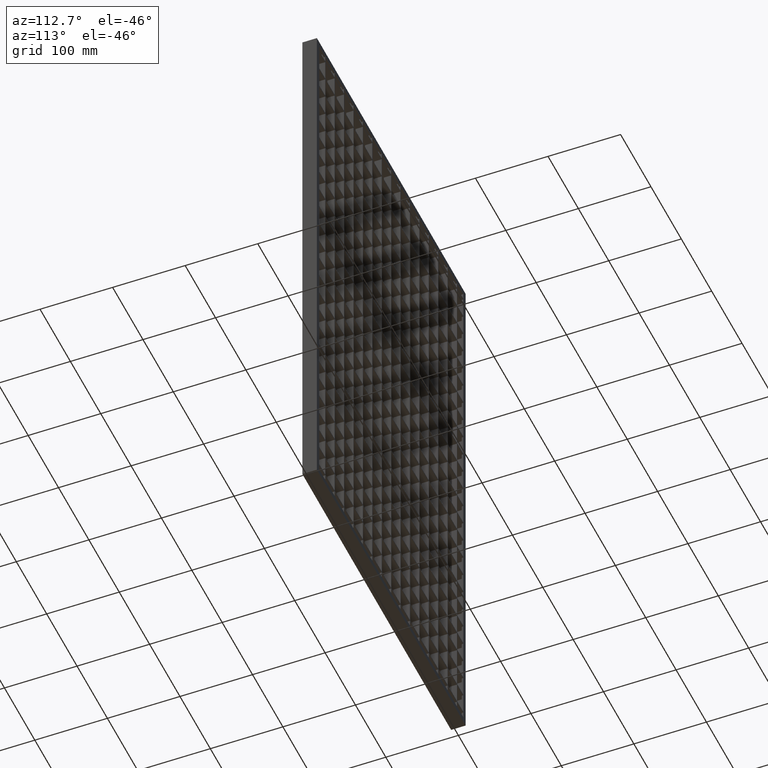
[diagram: clean part render]
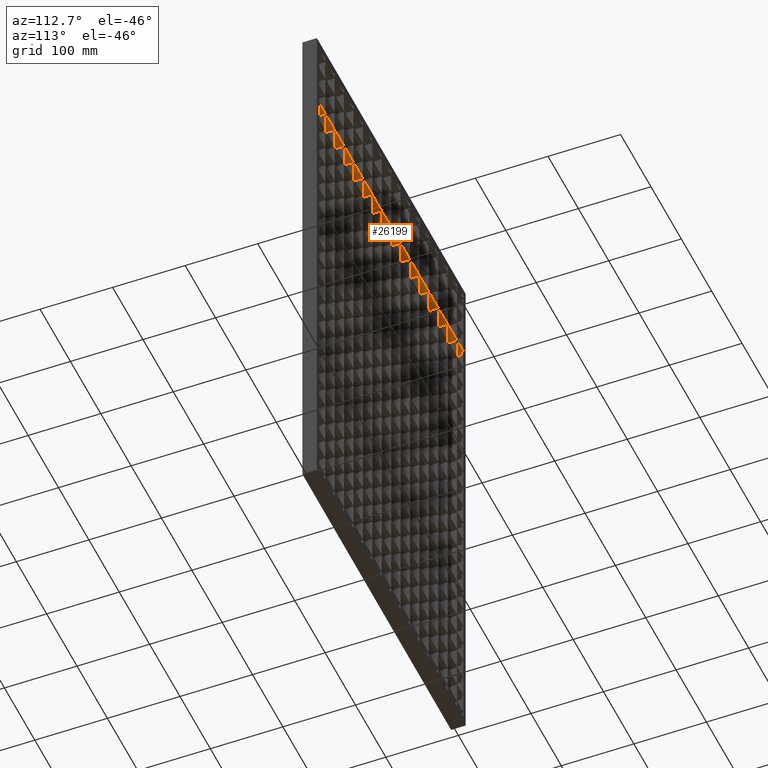
[diagram: same view with one face highlighted and labeled with its STEP entity id]
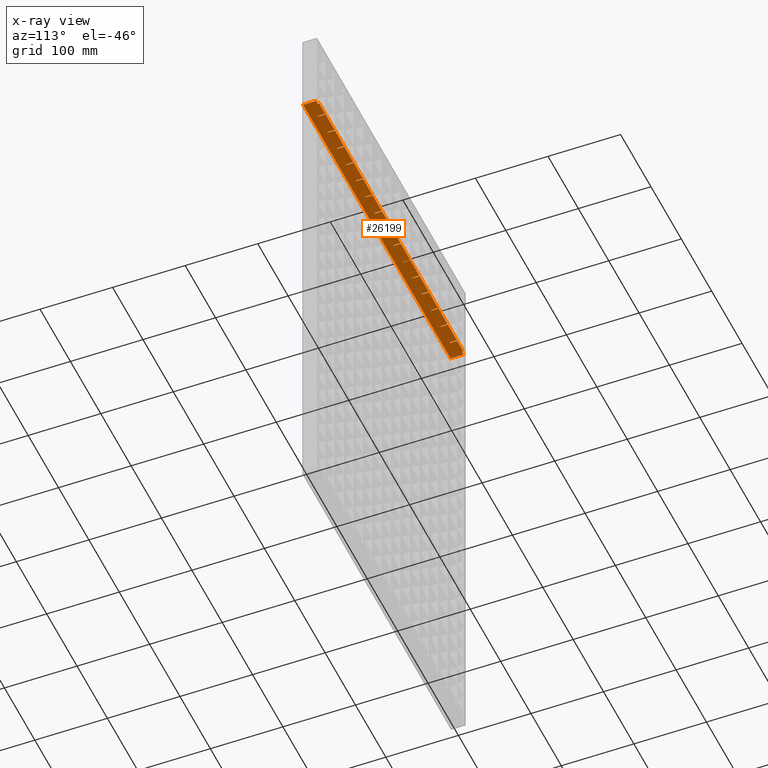
[diagram: x-ray of the same camera — body ghosted, the highlighted face saturated]
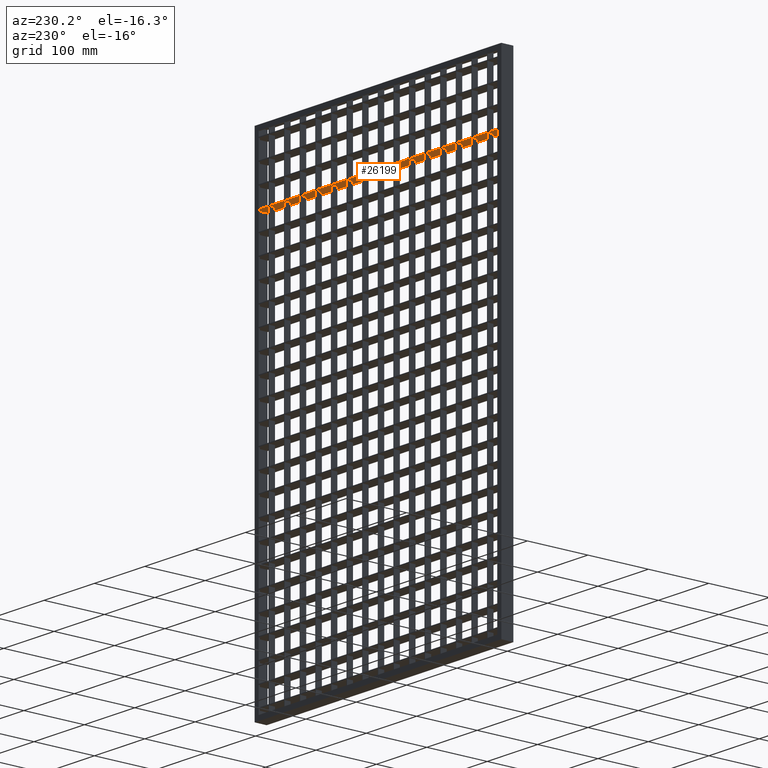
[diagram: same view with one face highlighted and labeled with its STEP entity id]
A machine part, auxiliary view. The second image highlights one B-rep face of the part: STEP entity #26199.
The next image is the same camera in x-ray: the body ghosted, the highlighted face saturated — about 0% of this face is hidden behind the body in this view.
A second angle (auxiliary view) of the same face is appended — the face is thin or edge-on in the first view.
In plain terms, the highlighted planar face has unit normal (0, 0, -1).
Its self-contained STEP definition (entity closure, byte-faithful):
#82 = LINE ( 'NONE', #16516, #46557 ) ;
#481 = VECTOR ( 'NONE', #22146, 1000.000000000000000 ) ;
#551 = ORIENTED_EDGE ( 'NONE', *, *, #10977, .T. ) ;
#600 = ORIENTED_EDGE ( 'NONE', *, *, #26577, .F. ) ;
#649 = LINE ( 'NONE', #9653, #35116 ) ;
#650 = CARTESIAN_POINT ( 'NONE',  ( 90.50000000000002800, -9.999999999999845500, -112.2500000000002400 ) ) ;
#694 = ORIENTED_EDGE ( 'NONE', *, *, #54282, .F. ) ;
#837 = DIRECTION ( 'NONE',  ( -1.000000000000000000, -3.061616997868380700E-016, 0.0000000000000000000 ) ) ;
#950 = EDGE_CURVE ( 'NONE', #7059, #19965, #26654, .T. ) ;
#1022 = VECTOR ( 'NONE', #55384, 1000.000000000000000 ) ;
#1104 = LINE ( 'NONE', #17338, #56067 ) ;
#1107 = ORIENTED_EDGE ( 'NONE', *, *, #25789, .F. ) ;
#1148 = VECTOR ( 'NONE', #2485, 1000.000000000000000 ) ;
#1376 = VECTOR ( 'NONE', #28658, 1000.000000000000000 ) ;
#1427 = ORIENTED_EDGE ( 'NONE', *, *, #37599, .T. ) ;
#1721 = VERTEX_POINT ( 'NONE', #31446 ) ;
#1821 = EDGE_CURVE ( 'NONE', #49928, #40200, #21672, .T. ) ;
#1891 = DIRECTION ( 'NONE',  ( -1.000000000000000000, -3.061616997868380700E-016, 0.0000000000000000000 ) ) ;
#1955 = EDGE_CURVE ( 'NONE', #22973, #39326, #56202, .T. ) ;
#1977 = VERTEX_POINT ( 'NONE', #51749 ) ;
#2008 = CARTESIAN_POINT ( 'NONE',  ( 58.50000000000000000, -9.999999999999845500, -112.2500000000002400 ) ) ;
#2027 = VECTOR ( 'NONE', #4820, 1000.000000000000000 ) ;
#2168 = ORIENTED_EDGE ( 'NONE', *, *, #32841, .T. ) ;
#2461 = CARTESIAN_POINT ( 'NONE',  ( 27.49999999999996800, 10.00000000000000700, -112.2500000000002400 ) ) ;
#2485 = DIRECTION ( 'NONE',  ( 0.0000000000000000000, 1.000000000000000000, 0.0000000000000000000 ) ) ;
#2534 = DIRECTION ( 'NONE',  ( -1.000000000000000000, -3.061616997868380700E-016, 0.0000000000000000000 ) ) ;
#2543 = CARTESIAN_POINT ( 'NONE',  ( 183.5000000000000000, 3.964497668408261800E-015, -112.2500000000001800 ) ) ;
#2618 = VERTEX_POINT ( 'NONE', #15480 ) ;
#2848 = VECTOR ( 'NONE', #14372, 1000.000000000000000 ) ;
#2863 = CARTESIAN_POINT ( 'NONE',  ( 151.4999999999999700, -9.999999999999845500, -112.2500000000002400 ) ) ;
#2907 = CARTESIAN_POINT ( 'NONE',  ( 508.0561711201315800, -6.765421556309547700E-014, -112.2500000000002400 ) ) ;
#3212 = EDGE_CURVE ( 'NONE', #9864, #56685, #56610, .T. ) ;
#3395 = ORIENTED_EDGE ( 'NONE', *, *, #1821, .T. ) ;
#3412 = VERTEX_POINT ( 'NONE', #40244 ) ;
#3689 = CARTESIAN_POINT ( 'NONE',  ( 244.5000000000000000, 10.00000000000007300, -112.2500000000002400 ) ) ;
#3831 = VECTOR ( 'NONE', #22556, 1000.000000000000000 ) ;
#4048 = LINE ( 'NONE', #33016, #41372 ) ;
#4253 = VERTEX_POINT ( 'NONE', #23632 ) ;
#4300 = CARTESIAN_POINT ( 'NONE',  ( 28.49999999999999600, 3.964497668408261800E-015, -112.2500000000001800 ) ) ;
#4416 = DIRECTION ( 'NONE',  ( -1.000000000000000000, -3.061616997868382600E-016, 0.0000000000000000000 ) ) ;
#4433 = CARTESIAN_POINT ( 'NONE',  ( 508.0561711201315800, 10.00000000000015500, -112.2500000000002400 ) ) ;
#4685 = CARTESIAN_POINT ( 'NONE',  ( 182.5000000000000000, 3.658335968621423900E-015, -112.2500000000001800 ) ) ;
#4705 = CARTESIAN_POINT ( 'NONE',  ( 462.5000000000000600, 3.658335968621423900E-015, -112.2500000000001800 ) ) ;
#4820 = DIRECTION ( 'NONE',  ( 0.0000000000000000000, -1.000000000000000000, 0.0000000000000000000 ) ) ;
#4849 = ORIENTED_EDGE ( 'NONE', *, *, #54950, .F. ) ;
#4851 = VECTOR ( 'NONE', #44559, 1000.000000000000000 ) ;
#4858 = EDGE_CURVE ( 'NONE', #57703, #2618, #28230, .T. ) ;
#4970 = VECTOR ( 'NONE', #33655, 1000.000000000000000 ) ;
#5308 = VECTOR ( 'NONE', #2534, 1000.000000000000000 ) ;
#5484 = CARTESIAN_POINT ( 'NONE',  ( 214.5000000000000000, 10.00000000000000400, -112.2500000000001800 ) ) ;
#5733 = CARTESIAN_POINT ( 'NONE',  ( 89.50000000000002800, -9.999999999999845500, -112.2500000000002400 ) ) ;
#5821 = VERTEX_POINT ( 'NONE', #58276 ) ;
#5854 = VECTOR ( 'NONE', #14544, 1000.000000000000000 ) ;
#6067 = CARTESIAN_POINT ( 'NONE',  ( 488.0000000000001100, -9.999999999999845500, -112.2500000000002400 ) ) ;
#6147 = EDGE_CURVE ( 'NONE', #30380, #28539, #49888, .T. ) ;
#6249 = DIRECTION ( 'NONE',  ( 0.0000000000000000000, 1.000000000000000000, 0.0000000000000000000 ) ) ;
#6308 = VECTOR ( 'NONE', #37776, 1000.000000000000000 ) ;
#6521 = VECTOR ( 'NONE', #47261, 1000.000000000000000 ) ;
#6541 = DIRECTION ( 'NONE',  ( 0.0000000000000000000, -1.000000000000000000, 0.0000000000000000000 ) ) ;
#6589 = VERTEX_POINT ( 'NONE', #14957 ) ;
#6600 = VERTEX_POINT ( 'NONE', #51144 ) ;
#6634 = VERTEX_POINT ( 'NONE', #32417 ) ;
#6671 = LINE ( 'NONE', #31373, #3831 ) ;
#6930 = VERTEX_POINT ( 'NONE', #13246 ) ;
#6958 = EDGE_CURVE ( 'NONE', #20044, #45493, #8222, .T. ) ;
#6966 = VECTOR ( 'NONE', #10266, 1000.000000000000000 ) ;
#7059 = VERTEX_POINT ( 'NONE', #14232 ) ;
#7065 = ORIENTED_EDGE ( 'NONE', *, *, #35187, .F. ) ;
#7140 = LINE ( 'NONE', #15963, #37356 ) ;
#7331 = EDGE_LOOP ( 'NONE', ( #40945, #43192, #48045, #56939, #17065, #32127, #551, #25969, #3395, #51737, #39044, #10007, #11523, #694, #56520, #22022, #18049, #4849, #27495, #49589, #10858, #12911, #15763, #32324, #15604, #8650, #54796, #34310, #35124, #13708, #36613, #49017, #29972, #40923, #28532, #44709, #48745, #51652, #10044, #12436, #600, #15676, #1107, #21993, #11411, #55442, #38448, #34418, #52610, #19463, #7065, #26135, #1427, #10488, #23888, #18756, #43594, #48123, #38796, #36119, #20841, #2168, #36922, #9563, #21802, #20865, #49551, #25279 ) ) ;
#7418 = EDGE_CURVE ( 'NONE', #8667, #1977, #1104, .T. ) ;
#7488 = CARTESIAN_POINT ( 'NONE',  ( 431.5000000000000600, 3.658335968621423900E-015, -112.2500000000001800 ) ) ;
#7624 = CARTESIAN_POINT ( 'NONE',  ( 400.5000000000000600, -9.999999999999845500, -112.2500000000002400 ) ) ;
#7674 = CARTESIAN_POINT ( 'NONE',  ( 58.50000000000000000, 3.658335968621423900E-015, -112.2500000000001800 ) ) ;
#7701 = CARTESIAN_POINT ( 'NONE',  ( 89.49999999999997200, 10.00000000000002700, -112.2500000000002400 ) ) ;
#7717 = CARTESIAN_POINT ( 'NONE',  ( 368.5000000000001100, 10.00000000000000400, -112.2500000000004000 ) ) ;
#7773 = CARTESIAN_POINT ( 'NONE',  ( 338.5000000000000600, 10.00000000000000400, -112.2500000000004000 ) ) ;
#8065 = CARTESIAN_POINT ( 'NONE',  ( 337.5000000000001100, -9.999999999999845500, -112.2500000000002400 ) ) ;
#8095 = VERTEX_POINT ( 'NONE', #4705 ) ;
#8220 = CARTESIAN_POINT ( 'NONE',  ( 183.5000000000000000, 10.00000000000000400, -112.2500000000001800 ) ) ;
#8222 = LINE ( 'NONE', #22080, #34934 ) ;
#8497 = VECTOR ( 'NONE', #12597, 1000.000000000000000 ) ;
#8510 = EDGE_CURVE ( 'NONE', #28990, #34208, #28822, .T. ) ;
#8554 = CARTESIAN_POINT ( 'NONE',  ( 508.0561711201315800, 10.00000000000015500, -112.2500000000002400 ) ) ;
#8650 = ORIENTED_EDGE ( 'NONE', *, *, #48206, .F. ) ;
#8664 = CARTESIAN_POINT ( 'NONE',  ( 2.000000000000003600, -10.00000000000000000, -112.2500000000003000 ) ) ;
#8667 = VERTEX_POINT ( 'NONE', #21352 ) ;
#8725 = EDGE_CURVE ( 'NONE', #24294, #50343, #49919, .T. ) ;
#8746 = VECTOR ( 'NONE', #27233, 1000.000000000000000 ) ;
#8786 = CARTESIAN_POINT ( 'NONE',  ( 461.5000000000000600, 10.00000000000000400, -112.2500000000004000 ) ) ;
#8883 = LINE ( 'NONE', #20561, #51876 ) ;
#8966 = CARTESIAN_POINT ( 'NONE',  ( 461.5000000000000600, -9.999999999999845500, -112.2500000000002400 ) ) ;
#9110 = LINE ( 'NONE', #55864, #57002 ) ;
#9327 = EDGE_CURVE ( 'NONE', #30380, #22960, #29382, .T. ) ;
#9360 = VECTOR ( 'NONE', #36792, 1000.000000000000000 ) ;
#9563 = ORIENTED_EDGE ( 'NONE', *, *, #45576, .T. ) ;
#9604 = EDGE_CURVE ( 'NONE', #51624, #57703, #4048, .T. ) ;
#9653 = CARTESIAN_POINT ( 'NONE',  ( 508.0561711201315800, 10.00000000000015500, -112.2500000000002400 ) ) ;
#9745 = CARTESIAN_POINT ( 'NONE',  ( 508.0561711201315800, 10.00000000000015500, -112.2500000000002400 ) ) ;
#9754 = LINE ( 'NONE', #54729, #6966 ) ;
#9864 = VERTEX_POINT ( 'NONE', #43451 ) ;
#10007 = ORIENTED_EDGE ( 'NONE', *, *, #31009, .F. ) ;
#10044 = ORIENTED_EDGE ( 'NONE', *, *, #13583, .F. ) ;
#10048 = VERTEX_POINT ( 'NONE', #4685 ) ;
#10152 = VERTEX_POINT ( 'NONE', #54262 ) ;
#10230 = VERTEX_POINT ( 'NONE', #15819 ) ;
#10231 = VECTOR ( 'NONE', #52463, 1000.000000000000000 ) ;
#10243 = VECTOR ( 'NONE', #18371, 1000.000000000000000 ) ;
#10266 = DIRECTION ( 'NONE',  ( -1.000000000000000000, -3.061616997868380700E-016, 0.0000000000000000000 ) ) ;
#10380 = CARTESIAN_POINT ( 'NONE',  ( 245.5000000000000000, 3.964497668408261800E-015, -112.2500000000001800 ) ) ;
#10488 = ORIENTED_EDGE ( 'NONE', *, *, #29348, .T. ) ;
#10760 = CARTESIAN_POINT ( 'NONE',  ( 28.49999999999999600, 10.00000000000000400, -112.2500000000001800 ) ) ;
#10858 = ORIENTED_EDGE ( 'NONE', *, *, #42662, .F. ) ;
#10977 = EDGE_CURVE ( 'NONE', #51504, #3412, #28424, .T. ) ;
#11411 = ORIENTED_EDGE ( 'NONE', *, *, #3212, .T. ) ;
#11516 = LINE ( 'NONE', #4433, #45987 ) ;
#11523 = ORIENTED_EDGE ( 'NONE', *, *, #50857, .F. ) ;
#11675 = EDGE_CURVE ( 'NONE', #29740, #10152, #13625, .T. ) ;
#11822 = DIRECTION ( 'NONE',  ( 0.0000000000000000000, -1.000000000000000000, 0.0000000000000000000 ) ) ;
#11862 = CARTESIAN_POINT ( 'NONE',  ( 369.5000000000001700, -9.999999999999845500, -112.2500000000002400 ) ) ;
#11864 = DIRECTION ( 'NONE',  ( -1.000000000000000000, -3.061616997868382600E-016, 0.0000000000000000000 ) ) ;
#11952 = LINE ( 'NONE', #29047, #1376 ) ;
#12059 = CARTESIAN_POINT ( 'NONE',  ( 182.5000000000000000, -9.999999999999845500, -112.2500000000002400 ) ) ;
#12292 = LINE ( 'NONE', #42870, #22151 ) ;
#12436 = ORIENTED_EDGE ( 'NONE', *, *, #950, .F. ) ;
#12495 = CARTESIAN_POINT ( 'NONE',  ( 508.0561711201315800, 1.509209424099822200E-013, -112.2500000000002400 ) ) ;
#12597 = DIRECTION ( 'NONE',  ( 0.0000000000000000000, 1.000000000000000000, 0.0000000000000000000 ) ) ;
#12860 = DIRECTION ( 'NONE',  ( 0.0000000000000000000, 1.000000000000000000, 0.0000000000000000000 ) ) ;
#12899 = CARTESIAN_POINT ( 'NONE',  ( 508.0561711201315800, 10.00000000000015500, -112.2500000000002400 ) ) ;
#12911 = ORIENTED_EDGE ( 'NONE', *, *, #44716, .F. ) ;
#12956 = LINE ( 'NONE', #7624, #26283 ) ;
#12981 = DIRECTION ( 'NONE',  ( 0.0000000000000000000, -1.000000000000000000, 0.0000000000000000000 ) ) ;
#13010 = LINE ( 'NONE', #18584, #1022 ) ;
#13125 = LINE ( 'NONE', #29405, #1148 ) ;
#13138 = VECTOR ( 'NONE', #27053, 1000.000000000000000 ) ;
#13246 = CARTESIAN_POINT ( 'NONE',  ( 482.0000000000001700, 8.000000000000001800, -112.2500000000004000 ) ) ;
#13254 = CARTESIAN_POINT ( 'NONE',  ( 244.5000000000000000, -9.999999999999845500, -112.2500000000002400 ) ) ;
#13360 = CARTESIAN_POINT ( 'NONE',  ( 245.0000000000000000, 8.000000000000001800, -112.2500000000002400 ) ) ;
#13583 = EDGE_CURVE ( 'NONE', #19965, #34314, #19886, .T. ) ;
#13601 = DIRECTION ( 'NONE',  ( 1.000000000000000000, -3.061616997868380700E-016, 0.0000000000000000000 ) ) ;
#13625 = LINE ( 'NONE', #31680, #9360 ) ;
#13708 = ORIENTED_EDGE ( 'NONE', *, *, #34028, .F. ) ;
#13952 = VERTEX_POINT ( 'NONE', #26437 ) ;
#13993 = EDGE_CURVE ( 'NONE', #50027, #26829, #21418, .T. ) ;
#14232 = CARTESIAN_POINT ( 'NONE',  ( 244.5000000000000000, 3.658335968621423900E-015, -112.2500000000001800 ) ) ;
#14372 = DIRECTION ( 'NONE',  ( 0.0000000000000000000, 1.000000000000000000, 0.0000000000000000000 ) ) ;
#14483 = CARTESIAN_POINT ( 'NONE',  ( 431.5000000000000600, 10.00000000000000400, -112.2500000000004000 ) ) ;
#14495 = EDGE_CURVE ( 'NONE', #50343, #8095, #16480, .T. ) ;
#14544 = DIRECTION ( 'NONE',  ( 0.0000000000000000000, 1.000000000000000000, 0.0000000000000000000 ) ) ;
#14666 = VECTOR ( 'NONE', #26539, 1000.000000000000000 ) ;
#14683 = LINE ( 'NONE', #14737, #16075 ) ;
#14737 = CARTESIAN_POINT ( 'NONE',  ( 276.5000000000000600, -9.999999999999845500, -112.2500000000002400 ) ) ;
#14803 = DIRECTION ( 'NONE',  ( 0.0000000000000000000, 1.000000000000000000, 0.0000000000000000000 ) ) ;
#14820 = VECTOR ( 'NONE', #22890, 1000.000000000000000 ) ;
#14957 = CARTESIAN_POINT ( 'NONE',  ( 369.5000000000001100, 10.00000000000000400, -112.2500000000004000 ) ) ;
#14978 = DIRECTION ( 'NONE',  ( 1.000000000000000000, 0.0000000000000000000, 0.0000000000000000000 ) ) ;
#15163 = CARTESIAN_POINT ( 'NONE',  ( 2.000000000000003600, 8.000000000000001800, -112.2500000000003000 ) ) ;
#15293 = CARTESIAN_POINT ( 'NONE',  ( 338.5000000000000600, 3.658335968621423900E-015, -112.2500000000001800 ) ) ;
#15307 = CARTESIAN_POINT ( 'NONE',  ( 508.0561711201315800, 1.214306433183765000E-013, -112.2500000000002400 ) ) ;
#15365 = EDGE_CURVE ( 'NONE', #40200, #53015, #38844, .T. ) ;
#15480 = CARTESIAN_POINT ( 'NONE',  ( 400.5000000000000000, 3.658335968621423900E-015, -112.2500000000001800 ) ) ;
#15604 = ORIENTED_EDGE ( 'NONE', *, *, #56364, .F. ) ;
#15676 = ORIENTED_EDGE ( 'NONE', *, *, #55795, .F. ) ;
#15763 = ORIENTED_EDGE ( 'NONE', *, *, #43202, .F. ) ;
#15819 = CARTESIAN_POINT ( 'NONE',  ( 369.5000000000001100, 3.658335968621423900E-015, -112.2500000000001800 ) ) ;
#15940 = DIRECTION ( 'NONE',  ( 0.0000000000000000000, -1.000000000000000000, 0.0000000000000000000 ) ) ;
#15963 = CARTESIAN_POINT ( 'NONE',  ( 152.4999999999999700, -9.999999999999845500, -112.2500000000002400 ) ) ;
#16075 = VECTOR ( 'NONE', #6249, 1000.000000000000000 ) ;
#16083 = DIRECTION ( 'NONE',  ( -1.000000000000000000, -3.061616997868381200E-016, 0.0000000000000000000 ) ) ;
#16157 = LINE ( 'NONE', #35673, #4851 ) ;
#16248 = LINE ( 'NONE', #32979, #2848 ) ;
#16271 = VECTOR ( 'NONE', #16912, 1000.000000000000000 ) ;
#16419 = EDGE_CURVE ( 'NONE', #28539, #6634, #17704, .T. ) ;
#16480 = LINE ( 'NONE', #39917, #37575 ) ;
#16516 = CARTESIAN_POINT ( 'NONE',  ( 482.0000000000001700, 8.000000000000001800, -112.2500000000001800 ) ) ;
#16543 = LINE ( 'NONE', #34364, #32714 ) ;
#16571 = LINE ( 'NONE', #2008, #18664 ) ;
#16818 = VERTEX_POINT ( 'NONE', #28298 ) ;
#16887 = CARTESIAN_POINT ( 'NONE',  ( 151.5000000000000000, 3.658335968621423900E-015, -112.2500000000001800 ) ) ;
#16893 = CARTESIAN_POINT ( 'NONE',  ( 306.5000000000001100, 3.469446951953614200E-015, -112.2500000000002400 ) ) ;
#16912 = DIRECTION ( 'NONE',  ( 0.0000000000000000000, -1.000000000000000000, 0.0000000000000000000 ) ) ;
#17065 = ORIENTED_EDGE ( 'NONE', *, *, #57924, .T. ) ;
#17338 = CARTESIAN_POINT ( 'NONE',  ( 213.5000000000000300, -9.999999999999845500, -112.2500000000002400 ) ) ;
#17490 = VECTOR ( 'NONE', #23901, 1000.000000000000000 ) ;
#17593 = VERTEX_POINT ( 'NONE', #2461 ) ;
#17704 = LINE ( 'NONE', #32016, #21191 ) ;
#17828 = FACE_OUTER_BOUND ( 'NONE', #7331, .T. ) ;
#18049 = ORIENTED_EDGE ( 'NONE', *, *, #8510, .F. ) ;
#18076 = DIRECTION ( 'NONE',  ( 0.0000000000000000000, -1.000000000000000000, 0.0000000000000000000 ) ) ;
#18238 = VERTEX_POINT ( 'NONE', #7701 ) ;
#18371 = DIRECTION ( 'NONE',  ( 1.000000000000000000, -3.061616997868380700E-016, 0.0000000000000000000 ) ) ;
#18419 = DIRECTION ( 'NONE',  ( -1.000000000000000000, -3.061616997868382600E-016, 0.0000000000000000000 ) ) ;
#18549 = VECTOR ( 'NONE', #44800, 1000.000000000000000 ) ;
#18584 = CARTESIAN_POINT ( 'NONE',  ( 508.0561711201315800, 10.00000000000015500, -112.2500000000002400 ) ) ;
#18646 = LINE ( 'NONE', #52647, #10231 ) ;
#18662 = CARTESIAN_POINT ( 'NONE',  ( 488.0000000000001100, 8.000000000000001800, -112.2500000000004000 ) ) ;
#18664 = VECTOR ( 'NONE', #33650, 1000.000000000000000 ) ;
#18756 = ORIENTED_EDGE ( 'NONE', *, *, #36858, .T. ) ;
#19463 = ORIENTED_EDGE ( 'NONE', *, *, #31672, .T. ) ;
#19673 = EDGE_CURVE ( 'NONE', #45493, #10048, #45416, .T. ) ;
#19787 = CARTESIAN_POINT ( 'NONE',  ( 7.999999999999996400, 8.000000000000001800, -112.2500000000003000 ) ) ;
#19831 = EDGE_CURVE ( 'NONE', #48278, #10230, #16543, .T. ) ;
#19886 = LINE ( 'NONE', #37204, #27506 ) ;
#19954 = EDGE_CURVE ( 'NONE', #18238, #13952, #6671, .T. ) ;
#19965 = VERTEX_POINT ( 'NONE', #3689 ) ;
#20044 = VERTEX_POINT ( 'NONE', #8220 ) ;
#20176 = DIRECTION ( 'NONE',  ( 0.0000000000000000000, 1.000000000000000000, 0.0000000000000000000 ) ) ;
#20401 = VERTEX_POINT ( 'NONE', #15293 ) ;
#20535 = EDGE_CURVE ( 'NONE', #32540, #34026, #44629, .T. ) ;
#20561 = CARTESIAN_POINT ( 'NONE',  ( 27.49999999999996800, -9.999999999999845500, -112.2500000000002400 ) ) ;
#20563 = CARTESIAN_POINT ( 'NONE',  ( 90.50000000000000000, 10.00000000000000400, -112.2500000000001800 ) ) ;
#20764 = DIRECTION ( 'NONE',  ( 0.0000000000000000000, 1.000000000000000000, 0.0000000000000000000 ) ) ;
#20833 = VERTEX_POINT ( 'NONE', #46886 ) ;
#20841 = ORIENTED_EDGE ( 'NONE', *, *, #4858, .T. ) ;
#20865 = ORIENTED_EDGE ( 'NONE', *, *, #29182, .T. ) ;
#21020 = DIRECTION ( 'NONE',  ( 1.000000000000000000, -3.061616997868381200E-016, 0.0000000000000000000 ) ) ;
#21156 = DIRECTION ( 'NONE',  ( 0.0000000000000000000, 1.000000000000000000, 0.0000000000000000000 ) ) ;
#21191 = VECTOR ( 'NONE', #13601, 1000.000000000000000 ) ;
#21330 = DIRECTION ( 'NONE',  ( 0.0000000000000000000, 0.0000000000000000000, -1.000000000000000000 ) ) ;
#21352 = CARTESIAN_POINT ( 'NONE',  ( 213.5000000000000000, 3.658335968621423900E-015, -112.2500000000001800 ) ) ;
#21418 = LINE ( 'NONE', #9745, #37630 ) ;
#21611 = EDGE_CURVE ( 'NONE', #29740, #6930, #82, .T. ) ;
#21672 = LINE ( 'NONE', #23183, #42792 ) ;
#21802 = ORIENTED_EDGE ( 'NONE', *, *, #24363, .T. ) ;
#21993 = ORIENTED_EDGE ( 'NONE', *, *, #54724, .T. ) ;
#22014 = CARTESIAN_POINT ( 'NONE',  ( 508.0561711201315800, -9.999999999999845500, -112.2500000000002400 ) ) ;
#22022 = ORIENTED_EDGE ( 'NONE', *, *, #57064, .F. ) ;
#22061 = EDGE_CURVE ( 'NONE', #24294, #27483, #40111, .T. ) ;
#22080 = CARTESIAN_POINT ( 'NONE',  ( 183.5000000000000000, -9.999999999999845500, -112.2500000000002400 ) ) ;
#22146 = DIRECTION ( 'NONE',  ( 1.000000000000000000, -3.061616997868381200E-016, 0.0000000000000000000 ) ) ;
#22151 = VECTOR ( 'NONE', #24553, 1000.000000000000000 ) ;
#22367 = CARTESIAN_POINT ( 'NONE',  ( 508.0561711201315800, 1.318389841742373400E-013, -112.2500000000002400 ) ) ;
#22556 = DIRECTION ( 'NONE',  ( -1.000000000000000000, -3.061616997868382600E-016, 0.0000000000000000000 ) ) ;
#22810 = LINE ( 'NONE', #29921, #48177 ) ;
#22890 = DIRECTION ( 'NONE',  ( 0.0000000000000000000, -1.000000000000000000, 0.0000000000000000000 ) ) ;
#22960 = VERTEX_POINT ( 'NONE', #43524 ) ;
#22973 = VERTEX_POINT ( 'NONE', #47877 ) ;
#23075 = DIRECTION ( 'NONE',  ( -1.000000000000000000, -3.061616997868382600E-016, 0.0000000000000000000 ) ) ;
#23183 = CARTESIAN_POINT ( 'NONE',  ( 2.000000000000003600, 8.000000000000001800, -112.2500000000003000 ) ) ;
#23376 = DIRECTION ( 'NONE',  ( 1.000000000000000000, -3.061616997868381200E-016, 0.0000000000000000000 ) ) ;
#23467 = VECTOR ( 'NONE', #1891, 1000.000000000000000 ) ;
#23632 = CARTESIAN_POINT ( 'NONE',  ( 90.50000000000000000, 3.964497668408261800E-015, -112.2500000000001800 ) ) ;
#23713 = CARTESIAN_POINT ( 'NONE',  ( 399.5000000000000000, 10.00000000000000400, -112.2500000000004000 ) ) ;
#23836 = VERTEX_POINT ( 'NONE', #4300 ) ;
#23888 = ORIENTED_EDGE ( 'NONE', *, *, #46626, .F. ) ;
#23901 = DIRECTION ( 'NONE',  ( -1.000000000000000000, -3.061616997868382600E-016, 0.0000000000000000000 ) ) ;
#24181 = CARTESIAN_POINT ( 'NONE',  ( 462.5000000000000600, -9.999999999999845500, -112.2500000000002400 ) ) ;
#24294 = VERTEX_POINT ( 'NONE', #8786 ) ;
#24363 = EDGE_CURVE ( 'NONE', #56256, #43722, #36380, .T. ) ;
#24553 = DIRECTION ( 'NONE',  ( 0.0000000000000000000, -1.000000000000000000, 0.0000000000000000000 ) ) ;
#24806 = CARTESIAN_POINT ( 'NONE',  ( 508.0561711201315800, 10.00000000000015500, -112.2500000000002400 ) ) ;
#25135 = VECTOR ( 'NONE', #21156, 1000.000000000000000 ) ;
#25279 = ORIENTED_EDGE ( 'NONE', *, *, #8725, .T. ) ;
#25482 = CARTESIAN_POINT ( 'NONE',  ( 461.5000000000000600, 3.469446951953614200E-015, -112.2500000000002400 ) ) ;
#25789 = EDGE_CURVE ( 'NONE', #16818, #1721, #57282, .T. ) ;
#25969 = ORIENTED_EDGE ( 'NONE', *, *, #28951, .T. ) ;
#26014 = DIRECTION ( 'NONE',  ( -1.000000000000000000, -3.061616997868381200E-016, 0.0000000000000000000 ) ) ;
#26015 = CARTESIAN_POINT ( 'NONE',  ( 276.5000000000000000, 3.658335968621423900E-015, -112.2500000000001800 ) ) ;
#26135 = ORIENTED_EDGE ( 'NONE', *, *, #34099, .T. ) ;
#26199 = ADVANCED_FACE ( 'NONE', ( #17828 ), #40007, .T. ) ;
#26283 = VECTOR ( 'NONE', #34719, 1000.000000000000000 ) ;
#26408 = CARTESIAN_POINT ( 'NONE',  ( 28.49999999999997200, -9.999999999999845500, -112.2500000000002400 ) ) ;
#26437 = CARTESIAN_POINT ( 'NONE',  ( 59.50000000000000000, 10.00000000000000400, -112.2500000000001800 ) ) ;
#26539 = DIRECTION ( 'NONE',  ( -1.000000000000000000, -3.061616997868382600E-016, 0.0000000000000000000 ) ) ;
#26558 = DIRECTION ( 'NONE',  ( 0.0000000000000000000, -1.000000000000000000, 0.0000000000000000000 ) ) ;
#26577 = EDGE_CURVE ( 'NONE', #38967, #7059, #32479, .T. ) ;
#26654 = LINE ( 'NONE', #13254, #28098 ) ;
#26829 = VERTEX_POINT ( 'NONE', #44099 ) ;
#27053 = DIRECTION ( 'NONE',  ( 0.0000000000000000000, -1.000000000000000000, 0.0000000000000000000 ) ) ;
#27233 = DIRECTION ( 'NONE',  ( -1.000000000000000000, -3.061616997868381200E-016, 0.0000000000000000000 ) ) ;
#27365 = CARTESIAN_POINT ( 'NONE',  ( 337.5000000000001100, 3.469446951953614200E-015, -112.2500000000002400 ) ) ;
#27402 = LINE ( 'NONE', #48580, #45038 ) ;
#27483 = VERTEX_POINT ( 'NONE', #14483 ) ;
#27495 = ORIENTED_EDGE ( 'NONE', *, *, #19954, .F. ) ;
#27506 = VECTOR ( 'NONE', #32871, 1000.000000000000000 ) ;
#27542 = VECTOR ( 'NONE', #837, 1000.000000000000000 ) ;
#27849 = DIRECTION ( 'NONE',  ( -1.000000000000000000, -3.061616997868382600E-016, 0.0000000000000000000 ) ) ;
#28098 = VECTOR ( 'NONE', #12860, 1000.000000000000000 ) ;
#28168 = CARTESIAN_POINT ( 'NONE',  ( 89.50000000000000000, 3.658335968621423900E-015, -112.2500000000001800 ) ) ;
#28221 = EDGE_CURVE ( 'NONE', #35143, #18238, #57028, .T. ) ;
#28230 = LINE ( 'NONE', #38519, #46543 ) ;
#28298 = CARTESIAN_POINT ( 'NONE',  ( 275.5000000000000000, 10.00000000000000400, -112.2500000000001800 ) ) ;
#28424 = LINE ( 'NONE', #22014, #35443 ) ;
#28438 = DIRECTION ( 'NONE',  ( -1.000000000000000000, -3.061616997868380700E-016, 0.0000000000000000000 ) ) ;
#28532 = ORIENTED_EDGE ( 'NONE', *, *, #57219, .F. ) ;
#28539 = VERTEX_POINT ( 'NONE', #16893 ) ;
#28658 = DIRECTION ( 'NONE',  ( 0.0000000000000000000, -1.000000000000000000, 0.0000000000000000000 ) ) ;
#28822 = LINE ( 'NONE', #52489, #30897 ) ;
#28951 = EDGE_CURVE ( 'NONE', #3412, #49928, #43712, .T. ) ;
#28990 = VERTEX_POINT ( 'NONE', #40306 ) ;
#29047 = CARTESIAN_POINT ( 'NONE',  ( 214.5000000000000300, -9.999999999999845500, -112.2500000000002400 ) ) ;
#29182 = EDGE_CURVE ( 'NONE', #43722, #27483, #16248, .T. ) ;
#29245 = LINE ( 'NONE', #33725, #36995 ) ;
#29336 = DIRECTION ( 'NONE',  ( 0.0000000000000000000, 1.000000000000000000, 0.0000000000000000000 ) ) ;
#29348 = EDGE_CURVE ( 'NONE', #20401, #36899, #9110, .T. ) ;
#29371 = EDGE_CURVE ( 'NONE', #34314, #56392, #11952, .T. ) ;
#29382 = LINE ( 'NONE', #57666, #14666 ) ;
#29405 = CARTESIAN_POINT ( 'NONE',  ( 307.5000000000001100, -9.999999999999845500, -112.2500000000002400 ) ) ;
#29557 = VECTOR ( 'NONE', #26014, 1000.000000000000000 ) ;
#29740 = VERTEX_POINT ( 'NONE', #54811 ) ;
#29921 = CARTESIAN_POINT ( 'NONE',  ( 508.0561711201315800, 10.00000000000015500, -112.2500000000002400 ) ) ;
#29945 = CARTESIAN_POINT ( 'NONE',  ( 121.5000000000000000, 3.964497668408261800E-015, -112.2500000000001800 ) ) ;
#29972 = ORIENTED_EDGE ( 'NONE', *, *, #19673, .F. ) ;
#30380 = VERTEX_POINT ( 'NONE', #51746 ) ;
#30897 = VECTOR ( 'NONE', #16083, 1000.000000000000000 ) ;
#31009 = EDGE_CURVE ( 'NONE', #33464, #17593, #8883, .T. ) ;
#31373 = CARTESIAN_POINT ( 'NONE',  ( 508.0561711201315800, 10.00000000000015500, -112.2500000000002400 ) ) ;
#31446 = CARTESIAN_POINT ( 'NONE',  ( 245.5000000000000000, 10.00000000000000400, -112.2500000000001800 ) ) ;
#31529 = VERTEX_POINT ( 'NONE', #10760 ) ;
#31672 = EDGE_CURVE ( 'NONE', #6634, #55644, #13125, .T. ) ;
#31680 = CARTESIAN_POINT ( 'NONE',  ( 508.0561711201315800, 10.00000000000015500, -112.2500000000002400 ) ) ;
#32016 = CARTESIAN_POINT ( 'NONE',  ( 508.0561711201315800, -5.898059818321144100E-014, -112.2500000000002400 ) ) ;
#32127 = ORIENTED_EDGE ( 'NONE', *, *, #38870, .F. ) ;
#32172 = VECTOR ( 'NONE', #39627, 1000.000000000000000 ) ;
#32324 = ORIENTED_EDGE ( 'NONE', *, *, #46287, .F. ) ;
#32417 = CARTESIAN_POINT ( 'NONE',  ( 307.5000000000000600, 3.658335968621423900E-015, -112.2500000000001800 ) ) ;
#32479 = LINE ( 'NONE', #41778, #27542 ) ;
#32540 = VERTEX_POINT ( 'NONE', #54156 ) ;
#32714 = VECTOR ( 'NONE', #21020, 1000.000000000000000 ) ;
#32841 = EDGE_CURVE ( 'NONE', #2618, #34026, #12956, .T. ) ;
#32871 = DIRECTION ( 'NONE',  ( -1.000000000000000000, -3.061616997868382600E-016, 0.0000000000000000000 ) ) ;
#32899 = VECTOR ( 'NONE', #38137, 1000.000000000000000 ) ;
#32979 = CARTESIAN_POINT ( 'NONE',  ( 431.5000000000001100, -9.999999999999845500, -112.2500000000002400 ) ) ;
#33016 = CARTESIAN_POINT ( 'NONE',  ( 399.5000000000000600, -9.999999999999845500, -112.2500000000002400 ) ) ;
#33414 = VERTEX_POINT ( 'NONE', #29945 ) ;
#33464 = VERTEX_POINT ( 'NONE', #47686 ) ;
#33650 = DIRECTION ( 'NONE',  ( 0.0000000000000000000, 1.000000000000000000, 0.0000000000000000000 ) ) ;
#33655 = DIRECTION ( 'NONE',  ( -1.000000000000000000, -3.061616997868382600E-016, 0.0000000000000000000 ) ) ;
#33725 = CARTESIAN_POINT ( 'NONE',  ( 508.0561711201315800, 1.127570259384924600E-013, -112.2500000000002400 ) ) ;
#34026 = VERTEX_POINT ( 'NONE', #38367 ) ;
#34028 = EDGE_CURVE ( 'NONE', #26829, #20833, #7140, .T. ) ;
#34099 = EDGE_CURVE ( 'NONE', #51951, #47150, #50764, .T. ) ;
#34203 = CARTESIAN_POINT ( 'NONE',  ( 399.5000000000000600, 3.469446951953614200E-015, -112.2500000000002400 ) ) ;
#34208 = VERTEX_POINT ( 'NONE', #7674 ) ;
#34310 = ORIENTED_EDGE ( 'NONE', *, *, #41095, .F. ) ;
#34314 = VERTEX_POINT ( 'NONE', #5484 ) ;
#34364 = CARTESIAN_POINT ( 'NONE',  ( 508.0561711201315800, -3.989863994746656300E-014, -112.2500000000002400 ) ) ;
#34418 = ORIENTED_EDGE ( 'NONE', *, *, #6147, .T. ) ;
#34456 = LINE ( 'NONE', #650, #14820 ) ;
#34640 = EDGE_CURVE ( 'NONE', #17593, #53015, #649, .T. ) ;
#34719 = DIRECTION ( 'NONE',  ( 0.0000000000000000000, 1.000000000000000000, 0.0000000000000000000 ) ) ;
#34934 = VECTOR ( 'NONE', #26558, 1000.000000000000000 ) ;
#35116 = VECTOR ( 'NONE', #54718, 1000.000000000000000 ) ;
#35124 = ORIENTED_EDGE ( 'NONE', *, *, #55209, .F. ) ;
#35143 = VERTEX_POINT ( 'NONE', #28168 ) ;
#35187 = EDGE_CURVE ( 'NONE', #51951, #55644, #56926, .T. ) ;
#35285 = LINE ( 'NONE', #11862, #6521 ) ;
#35443 = VECTOR ( 'NONE', #48989, 1000.000000000000000 ) ;
#35673 = CARTESIAN_POINT ( 'NONE',  ( 120.5000000000000000, -9.999999999999845500, -112.2500000000002400 ) ) ;
#35764 = DIRECTION ( 'NONE',  ( 0.0000000000000000000, 1.000000000000000000, 0.0000000000000000000 ) ) ;
#36038 = CARTESIAN_POINT ( 'NONE',  ( 508.0561711201315800, -4.857225732735059900E-014, -112.2500000000002400 ) ) ;
#36119 = ORIENTED_EDGE ( 'NONE', *, *, #9604, .T. ) ;
#36380 = LINE ( 'NONE', #40820, #481 ) ;
#36613 = ORIENTED_EDGE ( 'NONE', *, *, #13993, .F. ) ;
#36676 = VERTEX_POINT ( 'NONE', #20563 ) ;
#36733 = VECTOR ( 'NONE', #20176, 1000.000000000000000 ) ;
#36792 = DIRECTION ( 'NONE',  ( -1.000000000000000000, -3.061616997868382600E-016, 0.0000000000000000000 ) ) ;
#36858 = EDGE_CURVE ( 'NONE', #57148, #48278, #18646, .T. ) ;
#36899 = VERTEX_POINT ( 'NONE', #7773 ) ;
#36922 = ORIENTED_EDGE ( 'NONE', *, *, #20535, .F. ) ;
#36995 = VECTOR ( 'NONE', #28438, 1000.000000000000000 ) ;
#37050 = LINE ( 'NONE', #42864, #46202 ) ;
#37204 = CARTESIAN_POINT ( 'NONE',  ( 508.0561711201315800, 10.00000000000015500, -112.2500000000002400 ) ) ;
#37297 = CARTESIAN_POINT ( 'NONE',  ( 508.0561711201315800, 10.00000000000015500, -112.2500000000002400 ) ) ;
#37356 = VECTOR ( 'NONE', #11822, 1000.000000000000000 ) ;
#37575 = VECTOR ( 'NONE', #23376, 1000.000000000000000 ) ;
#37599 = EDGE_CURVE ( 'NONE', #47150, #20401, #42555, .T. ) ;
#37630 = VECTOR ( 'NONE', #18419, 1000.000000000000000 ) ;
#37756 = CARTESIAN_POINT ( 'NONE',  ( 508.0561711201315800, 1.023486850826316200E-013, -112.2500000000002400 ) ) ;
#37776 = DIRECTION ( 'NONE',  ( 0.0000000000000000000, 1.000000000000000000, 0.0000000000000000000 ) ) ;
#37956 = LINE ( 'NONE', #24181, #6308 ) ;
#38137 = DIRECTION ( 'NONE',  ( -1.000000000000000000, -3.061616997868382600E-016, 0.0000000000000000000 ) ) ;
#38367 = CARTESIAN_POINT ( 'NONE',  ( 400.5000000000000000, 10.00000000000000400, -112.2500000000004000 ) ) ;
#38448 = ORIENTED_EDGE ( 'NONE', *, *, #9327, .F. ) ;
#38519 = CARTESIAN_POINT ( 'NONE',  ( 508.0561711201315800, -2.949029909160572100E-014, -112.2500000000002400 ) ) ;
#38605 = VECTOR ( 'NONE', #41191, 1000.000000000000000 ) ;
#38796 = ORIENTED_EDGE ( 'NONE', *, *, #56759, .F. ) ;
#38844 = LINE ( 'NONE', #19787, #36733 ) ;
#38870 = EDGE_CURVE ( 'NONE', #51504, #43913, #51582, .T. ) ;
#38967 = VERTEX_POINT ( 'NONE', #10380 ) ;
#39005 = CARTESIAN_POINT ( 'NONE',  ( 7.999999999999996400, 10.00000000000000200, -112.2500000000001800 ) ) ;
#39044 = ORIENTED_EDGE ( 'NONE', *, *, #34640, .F. ) ;
#39326 = VERTEX_POINT ( 'NONE', #49472 ) ;
#39627 = DIRECTION ( 'NONE',  ( 0.0000000000000000000, -1.000000000000000000, 0.0000000000000000000 ) ) ;
#39698 = LINE ( 'NONE', #13360, #18549 ) ;
#39867 = LINE ( 'NONE', #40077, #13138 ) ;
#39917 = CARTESIAN_POINT ( 'NONE',  ( 508.0561711201315800, -1.040834085586084300E-014, -112.2500000000002400 ) ) ;
#40007 = PLANE ( 'NONE',  #43957 ) ;
#40077 = CARTESIAN_POINT ( 'NONE',  ( 59.50000000000000000, -9.999999999999845500, -112.2500000000002400 ) ) ;
#40111 = LINE ( 'NONE', #24806, #4970 ) ;
#40200 = VERTEX_POINT ( 'NONE', #42394 ) ;
#40244 = CARTESIAN_POINT ( 'NONE',  ( 2.000000000000003600, -10.00000000000000000, -112.2500000000003000 ) ) ;
#40306 = CARTESIAN_POINT ( 'NONE',  ( 59.50000000000000000, 3.964497668408261800E-015, -112.2500000000001800 ) ) ;
#40661 = CARTESIAN_POINT ( 'NONE',  ( 430.5000000000001100, 3.469446951953614200E-015, -112.2500000000002400 ) ) ;
#40820 = CARTESIAN_POINT ( 'NONE',  ( 508.0561711201315800, -2.081668171172168500E-014, -112.2500000000002400 ) ) ;
#40923 = ORIENTED_EDGE ( 'NONE', *, *, #6958, .F. ) ;
#40945 = ORIENTED_EDGE ( 'NONE', *, *, #14495, .T. ) ;
#40983 = CARTESIAN_POINT ( 'NONE',  ( 508.0561711201315800, 10.00000000000015500, -112.2500000000002400 ) ) ;
#41095 = EDGE_CURVE ( 'NONE', #49260, #22973, #49103, .T. ) ;
#41191 = DIRECTION ( 'NONE',  ( -1.000000000000000000, -3.061616997868382600E-016, 0.0000000000000000000 ) ) ;
#41229 = LINE ( 'NONE', #8554, #46869 ) ;
#41372 = VECTOR ( 'NONE', #55335, 1000.000000000000000 ) ;
#41778 = CARTESIAN_POINT ( 'NONE',  ( 508.0561711201315800, 8.326672684688674100E-014, -112.2500000000002400 ) ) ;
#42394 = CARTESIAN_POINT ( 'NONE',  ( 7.999999999999996400, 8.000000000000001800, -112.2500000000003000 ) ) ;
#42555 = LINE ( 'NONE', #36038, #10243 ) ;
#42662 = EDGE_CURVE ( 'NONE', #4253, #35143, #44631, .T. ) ;
#42792 = VECTOR ( 'NONE', #14978, 1000.000000000000000 ) ;
#42864 = CARTESIAN_POINT ( 'NONE',  ( 275.5000000000000600, -9.999999999999845500, -112.2500000000002400 ) ) ;
#42870 = CARTESIAN_POINT ( 'NONE',  ( 245.5000000000000000, -9.999999999999845500, -112.2500000000002400 ) ) ;
#42874 = VECTOR ( 'NONE', #6541, 1000.000000000000000 ) ;
#43032 = DIRECTION ( 'NONE',  ( 0.0000000000000000000, 1.000000000000000000, 0.0000000000000000000 ) ) ;
#43192 = ORIENTED_EDGE ( 'NONE', *, *, #53426, .T. ) ;
#43202 = EDGE_CURVE ( 'NONE', #43634, #36676, #11516, .T. ) ;
#43222 = VECTOR ( 'NONE', #44922, 1000.000000000000000 ) ;
#43232 = DIRECTION ( 'NONE',  ( 1.000000000000000000, -3.061616997868380700E-016, 0.0000000000000000000 ) ) ;
#43451 = CARTESIAN_POINT ( 'NONE',  ( 275.5000000000000600, 3.469446951953614200E-015, -112.2500000000002400 ) ) ;
#43524 = CARTESIAN_POINT ( 'NONE',  ( 276.5000000000000000, 10.00000000000000400, -112.2500000000001800 ) ) ;
#43554 = CARTESIAN_POINT ( 'NONE',  ( 337.5000000000000600, 10.00000000000000400, -112.2500000000004000 ) ) ;
#43594 = ORIENTED_EDGE ( 'NONE', *, *, #19831, .T. ) ;
#43631 = LINE ( 'NONE', #12495, #29557 ) ;
#43634 = VERTEX_POINT ( 'NONE', #56283 ) ;
#43712 = LINE ( 'NONE', #8664, #8497 ) ;
#43722 = VERTEX_POINT ( 'NONE', #7488 ) ;
#43913 = VERTEX_POINT ( 'NONE', #18662 ) ;
#43957 = AXIS2_PLACEMENT_3D ( 'NONE', #57344, #21330, #57917 ) ;
#44099 = CARTESIAN_POINT ( 'NONE',  ( 152.5000000000000000, 10.00000000000000400, -112.2500000000001800 ) ) ;
#44559 = DIRECTION ( 'NONE',  ( 0.0000000000000000000, 1.000000000000000000, 0.0000000000000000000 ) ) ;
#44629 = LINE ( 'NONE', #12899, #43222 ) ;
#44631 = LINE ( 'NONE', #22367, #8746 ) ;
#44688 = VECTOR ( 'NONE', #18076, 1000.000000000000000 ) ;
#44709 = ORIENTED_EDGE ( 'NONE', *, *, #7418, .F. ) ;
#44716 = EDGE_CURVE ( 'NONE', #36676, #4253, #34456, .T. ) ;
#44796 = CARTESIAN_POINT ( 'NONE',  ( 121.5000000000000000, -9.999999999999845500, -112.2500000000002400 ) ) ;
#44800 = DIRECTION ( 'NONE',  ( 1.000000000000000000, 0.0000000000000000000, 0.0000000000000000000 ) ) ;
#44896 = EDGE_CURVE ( 'NONE', #10048, #50027, #47117, .T. ) ;
#44922 = DIRECTION ( 'NONE',  ( -1.000000000000000000, -3.061616997868382600E-016, 0.0000000000000000000 ) ) ;
#45018 = VECTOR ( 'NONE', #14803, 1000.000000000000000 ) ;
#45038 = VECTOR ( 'NONE', #12981, 1000.000000000000000 ) ;
#45416 = LINE ( 'NONE', #37756, #5308 ) ;
#45493 = VERTEX_POINT ( 'NONE', #2543 ) ;
#45571 = LINE ( 'NONE', #26408, #32172 ) ;
#45576 = EDGE_CURVE ( 'NONE', #32540, #56256, #27402, .T. ) ;
#45712 = CARTESIAN_POINT ( 'NONE',  ( 307.5000000000000600, 10.00000000000000400, -112.2500000000004000 ) ) ;
#45987 = VECTOR ( 'NONE', #23075, 1000.000000000000000 ) ;
#46002 = CARTESIAN_POINT ( 'NONE',  ( 182.4999999999999400, 10.00000000000005500, -112.2500000000002400 ) ) ;
#46162 = CARTESIAN_POINT ( 'NONE',  ( 214.5000000000000000, 3.964497668408261800E-015, -112.2500000000001800 ) ) ;
#46202 = VECTOR ( 'NONE', #15940, 1000.000000000000000 ) ;
#46287 = EDGE_CURVE ( 'NONE', #5821, #43634, #16157, .T. ) ;
#46472 = EDGE_CURVE ( 'NONE', #56392, #8667, #9754, .T. ) ;
#46543 = VECTOR ( 'NONE', #56655, 1000.000000000000000 ) ;
#46557 = VECTOR ( 'NONE', #56863, 1000.000000000000000 ) ;
#46626 = EDGE_CURVE ( 'NONE', #57148, #36899, #58286, .T. ) ;
#46869 = VECTOR ( 'NONE', #4416, 1000.000000000000000 ) ;
#46886 = CARTESIAN_POINT ( 'NONE',  ( 152.5000000000000000, 3.964497668408261800E-015, -112.2500000000001800 ) ) ;
#46996 = CARTESIAN_POINT ( 'NONE',  ( 508.0561711201315800, 10.00000000000015500, -112.2500000000002400 ) ) ;
#47117 = LINE ( 'NONE', #12059, #56293 ) ;
#47150 = VERTEX_POINT ( 'NONE', #27365 ) ;
#47261 = DIRECTION ( 'NONE',  ( 0.0000000000000000000, 1.000000000000000000, 0.0000000000000000000 ) ) ;
#47431 = LINE ( 'NONE', #15307, #23467 ) ;
#47686 = CARTESIAN_POINT ( 'NONE',  ( 27.49999999999999600, 3.658335968621423900E-015, -112.2500000000001800 ) ) ;
#47877 = CARTESIAN_POINT ( 'NONE',  ( 151.4999999999999700, 10.00000000000004600, -112.2500000000002400 ) ) ;
#48045 = ORIENTED_EDGE ( 'NONE', *, *, #11675, .F. ) ;
#48123 = ORIENTED_EDGE ( 'NONE', *, *, #51318, .T. ) ;
#48177 = VECTOR ( 'NONE', #11864, 1000.000000000000000 ) ;
#48206 = EDGE_CURVE ( 'NONE', #39326, #33414, #56711, .T. ) ;
#48278 = VERTEX_POINT ( 'NONE', #54456 ) ;
#48580 = CARTESIAN_POINT ( 'NONE',  ( 430.5000000000001100, -9.999999999999845500, -112.2500000000002400 ) ) ;
#48745 = ORIENTED_EDGE ( 'NONE', *, *, #46472, .F. ) ;
#48989 = DIRECTION ( 'NONE',  ( -1.000000000000000000, -3.061616997868382600E-016, 0.0000000000000000000 ) ) ;
#49017 = ORIENTED_EDGE ( 'NONE', *, *, #44896, .F. ) ;
#49103 = LINE ( 'NONE', #2863, #25135 ) ;
#49260 = VERTEX_POINT ( 'NONE', #16887 ) ;
#49472 = CARTESIAN_POINT ( 'NONE',  ( 121.5000000000000000, 10.00000000000000400, -112.2500000000001800 ) ) ;
#49551 = ORIENTED_EDGE ( 'NONE', *, *, #22061, .F. ) ;
#49589 = ORIENTED_EDGE ( 'NONE', *, *, #28221, .F. ) ;
#49888 = LINE ( 'NONE', #55739, #42874 ) ;
#49919 = LINE ( 'NONE', #8966, #2027 ) ;
#49928 = VERTEX_POINT ( 'NONE', #15163 ) ;
#50027 = VERTEX_POINT ( 'NONE', #46002 ) ;
#50343 = VERTEX_POINT ( 'NONE', #25482 ) ;
#50711 = CARTESIAN_POINT ( 'NONE',  ( 508.0561711201315800, 10.00000000000015500, -112.2500000000002400 ) ) ;
#50764 = LINE ( 'NONE', #8065, #16271 ) ;
#50857 = EDGE_CURVE ( 'NONE', #23836, #33464, #43631, .T. ) ;
#50955 = VECTOR ( 'NONE', #43232, 1000.000000000000000 ) ;
#51144 = CARTESIAN_POINT ( 'NONE',  ( 58.49999999999994300, 10.00000000000001800, -112.2500000000002400 ) ) ;
#51318 = EDGE_CURVE ( 'NONE', #10230, #6589, #35285, .T. ) ;
#51504 = VERTEX_POINT ( 'NONE', #53544 ) ;
#51582 = LINE ( 'NONE', #6067, #5854 ) ;
#51624 = VERTEX_POINT ( 'NONE', #23713 ) ;
#51652 = ORIENTED_EDGE ( 'NONE', *, *, #29371, .F. ) ;
#51667 = VECTOR ( 'NONE', #27849, 1000.000000000000000 ) ;
#51737 = ORIENTED_EDGE ( 'NONE', *, *, #15365, .T. ) ;
#51746 = CARTESIAN_POINT ( 'NONE',  ( 306.5000000000000600, 10.00000000000000400, -112.2500000000004000 ) ) ;
#51749 = CARTESIAN_POINT ( 'NONE',  ( 213.4999999999999700, 10.00000000000006400, -112.2500000000002400 ) ) ;
#51876 = VECTOR ( 'NONE', #20764, 1000.000000000000000 ) ;
#51951 = VERTEX_POINT ( 'NONE', #43554 ) ;
#52463 = DIRECTION ( 'NONE',  ( 0.0000000000000000000, -1.000000000000000000, 0.0000000000000000000 ) ) ;
#52489 = CARTESIAN_POINT ( 'NONE',  ( 508.0561711201315800, 1.405126015541213700E-013, -112.2500000000002400 ) ) ;
#52610 = ORIENTED_EDGE ( 'NONE', *, *, #16419, .T. ) ;
#52647 = CARTESIAN_POINT ( 'NONE',  ( 368.5000000000001700, -9.999999999999845500, -112.2500000000002400 ) ) ;
#53015 = VERTEX_POINT ( 'NONE', #39005 ) ;
#53426 = EDGE_CURVE ( 'NONE', #8095, #10152, #37956, .T. ) ;
#53544 = CARTESIAN_POINT ( 'NONE',  ( 488.0000000000001100, -10.00000000000000000, -112.2500000000004000 ) ) ;
#54061 = EDGE_CURVE ( 'NONE', #56685, #22960, #14683, .T. ) ;
#54156 = CARTESIAN_POINT ( 'NONE',  ( 430.5000000000000600, 10.00000000000000400, -112.2500000000004000 ) ) ;
#54262 = CARTESIAN_POINT ( 'NONE',  ( 462.5000000000000600, 10.00000000000000400, -112.2500000000004000 ) ) ;
#54282 = EDGE_CURVE ( 'NONE', #31529, #23836, #45571, .T. ) ;
#54456 = CARTESIAN_POINT ( 'NONE',  ( 368.5000000000001700, 3.469446951953614200E-015, -112.2500000000002400 ) ) ;
#54718 = DIRECTION ( 'NONE',  ( -1.000000000000000000, -3.061616997868382600E-016, 0.0000000000000000000 ) ) ;
#54724 = EDGE_CURVE ( 'NONE', #16818, #9864, #37050, .T. ) ;
#54729 = CARTESIAN_POINT ( 'NONE',  ( 508.0561711201315800, 9.367506770274758300E-014, -112.2500000000002400 ) ) ;
#54796 = ORIENTED_EDGE ( 'NONE', *, *, #1955, .F. ) ;
#54811 = CARTESIAN_POINT ( 'NONE',  ( 482.0000000000004000, 10.00000000000000200, -112.2500000000005100 ) ) ;
#54950 = EDGE_CURVE ( 'NONE', #13952, #28990, #39867, .T. ) ;
#55209 = EDGE_CURVE ( 'NONE', #20833, #49260, #29245, .T. ) ;
#55335 = DIRECTION ( 'NONE',  ( 0.0000000000000000000, -1.000000000000000000, 0.0000000000000000000 ) ) ;
#55384 = DIRECTION ( 'NONE',  ( -1.000000000000000000, -3.061616997868382600E-016, 0.0000000000000000000 ) ) ;
#55442 = ORIENTED_EDGE ( 'NONE', *, *, #54061, .T. ) ;
#55644 = VERTEX_POINT ( 'NONE', #45712 ) ;
#55739 = CARTESIAN_POINT ( 'NONE',  ( 306.5000000000001100, -9.999999999999845500, -112.2500000000002400 ) ) ;
#55795 = EDGE_CURVE ( 'NONE', #1721, #38967, #12292, .T. ) ;
#55864 = CARTESIAN_POINT ( 'NONE',  ( 338.5000000000001100, -9.999999999999845500, -112.2500000000002400 ) ) ;
#56067 = VECTOR ( 'NONE', #35764, 1000.000000000000000 ) ;
#56202 = LINE ( 'NONE', #46996, #32899 ) ;
#56256 = VERTEX_POINT ( 'NONE', #40661 ) ;
#56283 = CARTESIAN_POINT ( 'NONE',  ( 120.5000000000000000, 10.00000000000003700, -112.2500000000002400 ) ) ;
#56293 = VECTOR ( 'NONE', #29336, 1000.000000000000000 ) ;
#56364 = EDGE_CURVE ( 'NONE', #33414, #5821, #47431, .T. ) ;
#56392 = VERTEX_POINT ( 'NONE', #46162 ) ;
#56520 = ORIENTED_EDGE ( 'NONE', *, *, #56961, .F. ) ;
#56610 = LINE ( 'NONE', #2907, #50955 ) ;
#56655 = DIRECTION ( 'NONE',  ( 1.000000000000000000, -3.061616997868381200E-016, 0.0000000000000000000 ) ) ;
#56685 = VERTEX_POINT ( 'NONE', #26015 ) ;
#56711 = LINE ( 'NONE', #44796, #44688 ) ;
#56759 = EDGE_CURVE ( 'NONE', #51624, #6589, #41229, .T. ) ;
#56863 = DIRECTION ( 'NONE',  ( 0.0000000000000000000, -1.000000000000000000, 0.0000000000000000000 ) ) ;
#56926 = LINE ( 'NONE', #40983, #38605 ) ;
#56939 = ORIENTED_EDGE ( 'NONE', *, *, #21611, .T. ) ;
#56961 = EDGE_CURVE ( 'NONE', #6600, #31529, #13010, .T. ) ;
#57002 = VECTOR ( 'NONE', #43032, 1000.000000000000000 ) ;
#57028 = LINE ( 'NONE', #5733, #45018 ) ;
#57064 = EDGE_CURVE ( 'NONE', #34208, #6600, #16571, .T. ) ;
#57148 = VERTEX_POINT ( 'NONE', #7717 ) ;
#57219 = EDGE_CURVE ( 'NONE', #1977, #20044, #22810, .T. ) ;
#57282 = LINE ( 'NONE', #50711, #51667 ) ;
#57344 = CARTESIAN_POINT ( 'NONE',  ( 508.0561711201315800, -9.999999999999845500, -112.2500000000002400 ) ) ;
#57666 = CARTESIAN_POINT ( 'NONE',  ( 508.0561711201315800, 10.00000000000015500, -112.2500000000002400 ) ) ;
#57703 = VERTEX_POINT ( 'NONE', #34203 ) ;
#57917 = DIRECTION ( 'NONE',  ( -1.000000000000000000, 0.0000000000000000000, 0.0000000000000000000 ) ) ;
#57924 = EDGE_CURVE ( 'NONE', #6930, #43913, #39698, .T. ) ;
#58276 = CARTESIAN_POINT ( 'NONE',  ( 120.5000000000000000, 3.658335968621423900E-015, -112.2500000000001800 ) ) ;
#58286 = LINE ( 'NONE', #37297, #17490 ) ;